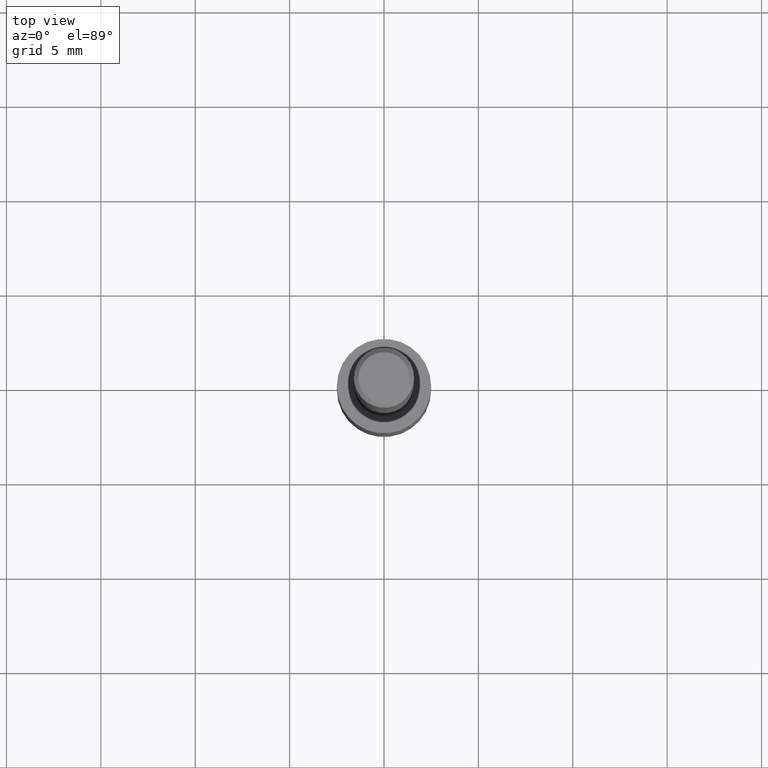
[diagram: clean part render]
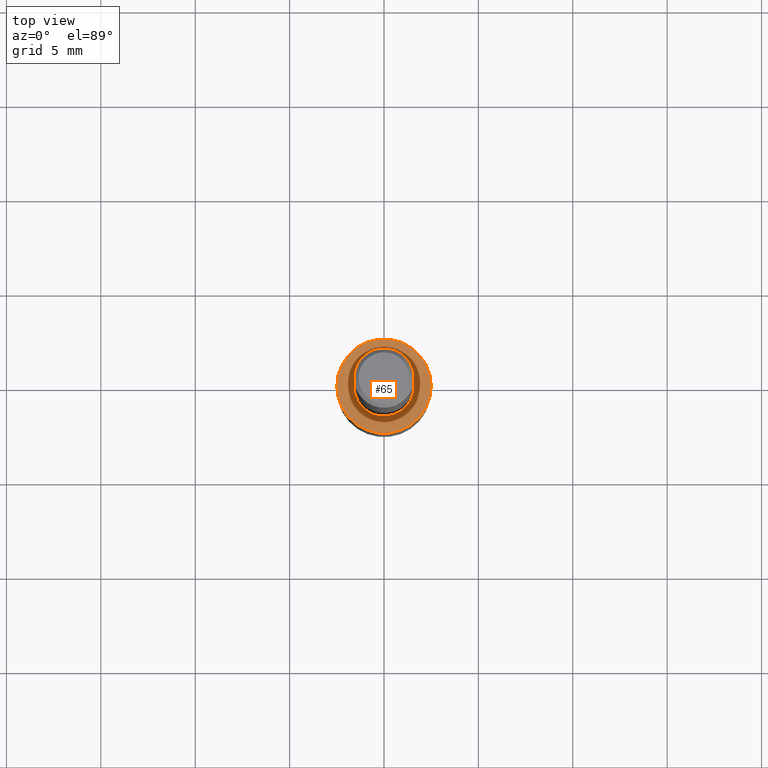
[diagram: same view with one face highlighted and labeled with its STEP entity id]
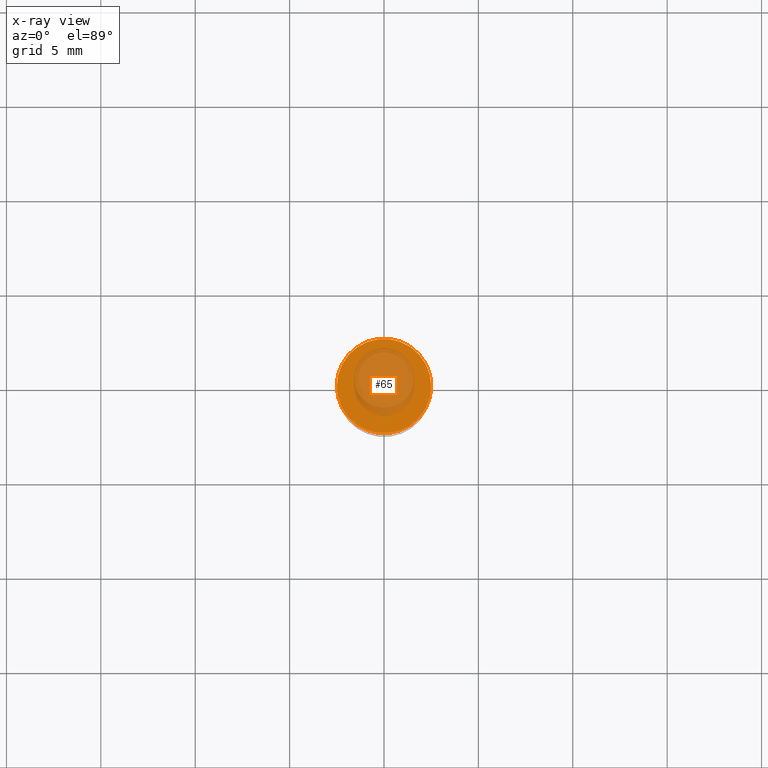
[diagram: x-ray of the same camera — body ghosted, the highlighted face saturated]
A machine part, top view. The second image highlights one B-rep face of the part: STEP entity #65.
The next image is the same camera in x-ray: the body ghosted, the highlighted face saturated — about 46% of this face is hidden behind the body in this view.
In plain terms, the highlighted planar face has unit normal (0, -0, -1).
Its self-contained STEP definition (entity closure, byte-faithful):
#12 = EDGE_CURVE ( 'NONE', #334, #317, #76, .T. ) ;
#25 = ORIENTED_EDGE ( 'NONE', *, *, #12, .T. ) ;
#43 = CARTESIAN_POINT ( 'NONE',  ( 0.09840000000000000135, -4.178604866327475025E-15, -1.000000000000000222 ) ) ;
#54 = AXIS2_PLACEMENT_3D ( 'NONE', #269, #85, #110 ) ;
#61 = CARTESIAN_POINT ( 'NONE',  ( 3.414797697489490159E-29, -2.103347195721061331E-15, -1.000000000000000222 ) ) ;
#65 = ADVANCED_FACE ( 'NONE', ( #134 ), #212, .F. ) ;
#72 = DIRECTION ( 'NONE',  ( -1.000000000000000000, 6.982962677686265922E-15, -4.876176775795935793E-29 ) ) ;
#76 = CIRCLE ( 'NONE', #54, 0.09840000000000000135 ) ;
#85 = DIRECTION ( 'NONE',  ( -2.445468806185136597E-29, 3.491481338843145583E-15, 1.000000000000000000 ) ) ;
#110 = DIRECTION ( 'NONE',  ( 1.000000000000000000, -6.982962677686266711E-15, 0.000000000000000000 ) ) ;
#134 = FACE_OUTER_BOUND ( 'NONE', #255, .T. ) ;
#137 = ORIENTED_EDGE ( 'NONE', *, *, #318, .T. ) ;
#140 = CIRCLE ( 'NONE', #158, 0.09840000000000000135 ) ;
#145 = DIRECTION ( 'NONE',  ( 1.000000000000000000, -6.982962677686266711E-15, 0.000000000000000000 ) ) ;
#158 = AXIS2_PLACEMENT_3D ( 'NONE', #174, #194, #145 ) ;
#170 = CARTESIAN_POINT ( 'NONE',  ( -0.09840000000000000135, -3.585074880824888582E-15, -1.000000000000000222 ) ) ;
#174 = CARTESIAN_POINT ( 'NONE',  ( 2.445468806185136877E-29, -3.491481338843145977E-15, -1.000000000000000222 ) ) ;
#194 = DIRECTION ( 'NONE',  ( -2.445468806185136597E-29, 3.491481338843145583E-15, 1.000000000000000000 ) ) ;
#212 = PLANE ( 'NONE',  #325 ) ;
#255 = EDGE_LOOP ( 'NONE', ( #137, #25 ) ) ;
#269 = CARTESIAN_POINT ( 'NONE',  ( 2.445468806185136877E-29, -3.491481338843145977E-15, -1.000000000000000222 ) ) ;
#293 = DIRECTION ( 'NONE',  ( 2.438088387897960049E-29, -3.491481338843145188E-15, -1.000000000000000000 ) ) ;
#317 = VERTEX_POINT ( 'NONE', #43 ) ;
#318 = EDGE_CURVE ( 'NONE', #317, #334, #140, .T. ) ;
#325 = AXIS2_PLACEMENT_3D ( 'NONE', #61, #293, #72 ) ;
#334 = VERTEX_POINT ( 'NONE', #170 ) ;